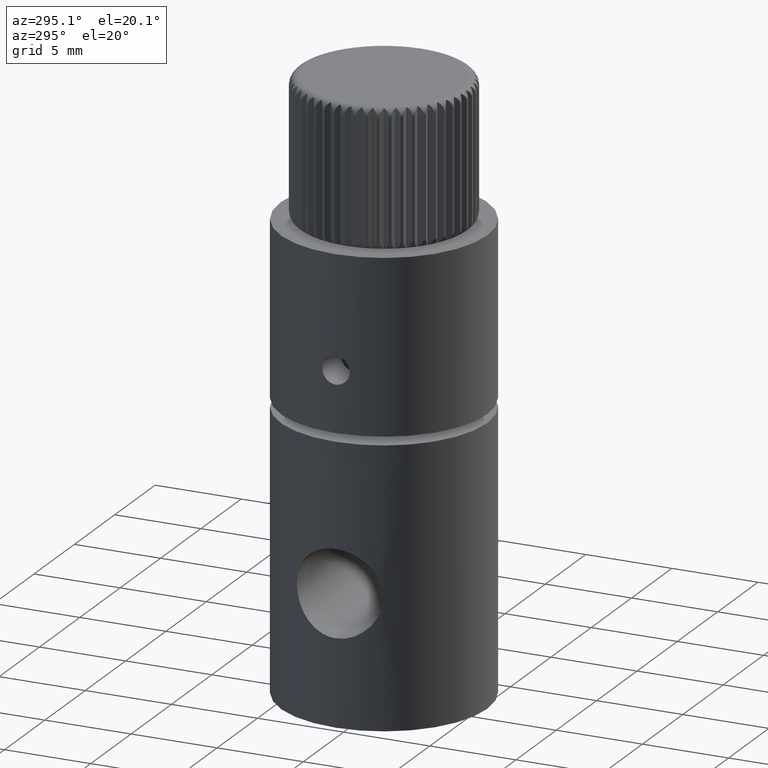
[diagram: clean part render]
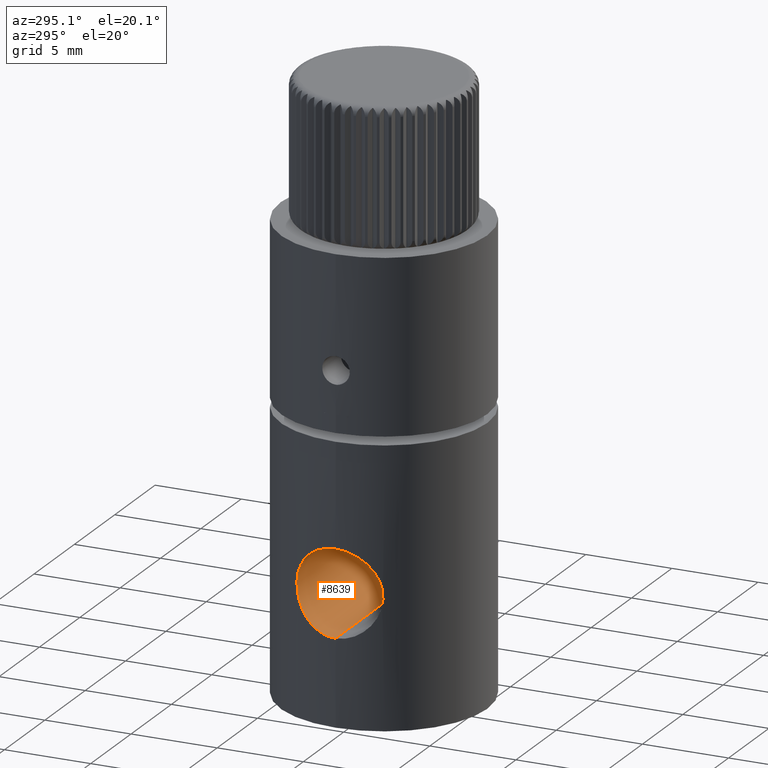
[diagram: same view with one face highlighted and labeled with its STEP entity id]
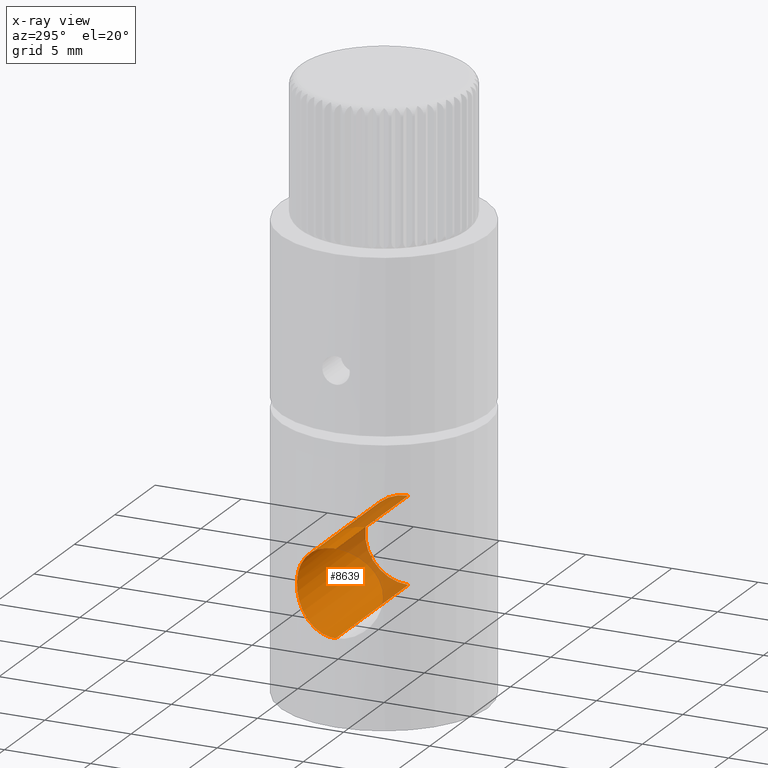
[diagram: x-ray of the same camera — body ghosted, the highlighted face saturated]
A machine part, auxiliary view. The second image highlights one B-rep face of the part: STEP entity #8639.
The next image is the same camera in x-ray: the body ghosted, the highlighted face saturated — about 22% of this face is hidden behind the body in this view.
In plain terms, the highlighted cylindrical surface (partial cylindrical patch) has radius 2.5 mm, axis along (-1, -0, -0).
Its self-contained STEP definition (entity closure, byte-faithful):
#86 = CIRCLE ( 'NONE', #348, 2.499999999999998700 ) ;
#348 = AXIS2_PLACEMENT_3D ( 'NONE', #8832, #9520, #6317 ) ;
#435 = CARTESIAN_POINT ( 'NONE',  ( -5.491053255503498300, 2.418593444814171300, 6.846204008123888400 ) ) ;
#818 = CARTESIAN_POINT ( 'NONE',  ( -5.999999999999996400, 8.673617379884035500E-016, 7.500000000000000000 ) ) ;
#871 = VERTEX_POINT ( 'NONE', #7406 ) ;
#906 = VECTOR ( 'NONE', #8063, 1000.000000000000000 ) ;
#1162 = DIRECTION ( 'NONE',  ( 0.0000000000000000000, 0.0000000000000000000, 1.000000000000000000 ) ) ;
#1258 = ORIENTED_EDGE ( 'NONE', *, *, #3018, .T. ) ;
#1317 = CARTESIAN_POINT ( 'NONE',  ( -5.698635342894789300, 1.881449780072504500, 5.845840146213110000 ) ) ;
#1350 = LINE ( 'NONE', #10077, #4005 ) ;
#1740 = DIRECTION ( 'NONE',  ( -1.000000000000000000, -0.0000000000000000000, -0.0000000000000000000 ) ) ;
#1839 = VERTEX_POINT ( 'NONE', #5566 ) ;
#1878 = EDGE_CURVE ( 'NONE', #2751, #7685, #1350, .T. ) ;
#2081 = CARTESIAN_POINT ( 'NONE',  ( -5.993025678387394500, 0.3313286651165026600, 9.983390551656807300 ) ) ;
#2115 = CARTESIAN_POINT ( 'NONE',  ( -5.512296490036577600, 2.370510600221101600, 6.688919642907562100 ) ) ;
#2609 = AXIS2_PLACEMENT_3D ( 'NONE', #818, #1740, #1162 ) ;
#2751 = VERTEX_POINT ( 'NONE', #5667 ) ;
#2942 = CARTESIAN_POINT ( 'NONE',  ( -5.868189014291121300, 1.258442380232151200, 9.666296504189473300 ) ) ;
#2979 = CARTESIAN_POINT ( 'NONE',  ( -5.803710641115049600, 1.528475880810605100, 5.514995588957928500 ) ) ;
#3017 = CARTESIAN_POINT ( 'NONE',  ( -5.999999999999998200, 0.1672401054569761000, 10.00000000000000200 ) ) ;
#3018 = EDGE_CURVE ( 'NONE', #871, #7685, #9778, .T. ) ;
#3290 = ORIENTED_EDGE ( 'NONE', *, *, #7719, .F. ) ;
#3773 = CARTESIAN_POINT ( 'NONE',  ( -5.512683608006680600, 2.369582593462938200, 8.313322364475594000 ) ) ;
#4005 = VECTOR ( 'NONE', #6695, 1000.000000000000000 ) ;
#4635 = CARTESIAN_POINT ( 'NONE',  ( -5.999999999999996400, 1.028501702097774900E-020, 5.000000000000000900 ) ) ;
#4706 = CARTESIAN_POINT ( 'NONE',  ( -5.663027394641082100, 1.996726160520223800, 9.038487981714741400 ) ) ;
#4747 = CARTESIAN_POINT ( 'NONE',  ( -5.590935308825295100, 2.181708341974952800, 8.763253123388882000 ) ) ;
#5445 = CARTESIAN_POINT ( 'NONE',  ( -5.999999999999996400, 0.3294735782554636400, 5.000000000000000000 ) ) ;
#5551 = CARTESIAN_POINT ( 'NONE',  ( -5.454405485178528900, 2.499892161112044600, 7.666875040158466000 ) ) ;
#5566 = CARTESIAN_POINT ( 'NONE',  ( 3.000000000000004400, 8.673617379884035500E-016, 9.999999999999998200 ) ) ;
#5667 = CARTESIAN_POINT ( 'NONE',  ( 3.000000000000004400, 1.173523437775241600E-015, 5.000000000000001800 ) ) ;
#6317 = DIRECTION ( 'NONE',  ( 0.0000000000000000000, 0.0000000000000000000, 1.000000000000000000 ) ) ;
#6406 = CARTESIAN_POINT ( 'NONE',  ( -5.999999999999996400, -3.796207753093473700E-017, 9.999999999999998200 ) ) ;
#6446 = CARTESIAN_POINT ( 'NONE',  ( -5.897379805078886200, 1.115495851646001600, 9.743317304753061200 ) ) ;
#6628 = LINE ( 'NONE', #9885, #906 ) ;
#6695 = DIRECTION ( 'NONE',  ( -1.000000000000000000, -0.0000000000000000000, -0.0000000000000000000 ) ) ;
#7175 = CARTESIAN_POINT ( 'NONE',  ( -5.461976513600096600, 2.483561809314556200, 7.830378954680894000 ) ) ;
#7229 = ORIENTED_EDGE ( 'NONE', *, *, #1878, .F. ) ;
#7249 = CARTESIAN_POINT ( 'NONE',  ( -5.769071837164854200, 1.652909006526312800, 5.617451218969522500 ) ) ;
#7260 = ORIENTED_EDGE ( 'NONE', *, *, #9898, .T. ) ;
#7285 = CARTESIAN_POINT ( 'NONE',  ( -5.803619680562209600, 1.528829007836515000, 9.484741704410305700 ) ) ;
#7385 = CYLINDRICAL_SURFACE ( 'NONE', #2609, 2.499999999999998700 ) ;
#7406 = CARTESIAN_POINT ( 'NONE',  ( -5.999999999999996400, -3.796207753093473700E-017, 9.999999999999998200 ) ) ;
#7685 = VERTEX_POINT ( 'NONE', #10442 ) ;
#7719 = EDGE_CURVE ( 'NONE', #1839, #2751, #86, .T. ) ;
#7944 = CARTESIAN_POINT ( 'NONE',  ( -5.971116335839158600, 0.6621311939231094800, 5.067397270975984500 ) ) ;
#7981 = CARTESIAN_POINT ( 'NONE',  ( -5.966488535110094000, 0.6535671553393448400, 9.918647822616558000 ) ) ;
#8023 = CARTESIAN_POINT ( 'NONE',  ( -5.662626222328961000, 1.985928082928958500, 5.972807861370669400 ) ) ;
#8063 = DIRECTION ( 'NONE',  ( -1.000000000000000000, -0.0000000000000000000, -0.0000000000000000000 ) ) ;
#8409 = EDGE_LOOP ( 'NONE', ( #7229, #3290, #7260, #1258 ) ) ;
#8639 = ADVANCED_FACE ( 'NONE', ( #10754 ), #7385, .F. ) ;
#8810 = CARTESIAN_POINT ( 'NONE',  ( -5.565201832296446900, 2.243493183772682400, 6.384692784122994300 ) ) ;
#8832 = CARTESIAN_POINT ( 'NONE',  ( 3.000000000000004400, 8.673617379884035500E-016, 7.500000000000000000 ) ) ;
#8884 = CARTESIAN_POINT ( 'NONE',  ( -5.596081245774402500, 2.166361182966829400, 6.241784834063874000 ) ) ;
#8918 = CARTESIAN_POINT ( 'NONE',  ( -5.946577916524693900, 0.8134068127896105800, 9.869635601047432900 ) ) ;
#9520 = DIRECTION ( 'NONE',  ( -1.000000000000000000, -0.0000000000000000000, -0.0000000000000000000 ) ) ;
#9655 = CARTESIAN_POINT ( 'NONE',  ( -5.897869239595885400, 1.112789484202404400, 5.255408054310577400 ) ) ;
#9696 = CARTESIAN_POINT ( 'NONE',  ( -5.454307112671460600, 2.500106784638723900, 7.336371880103818000 ) ) ;
#9778 = B_SPLINE_CURVE_WITH_KNOTS ( 'NONE', 3,
 ( #6406, #3017, #2081, #7981, #8918, #6446, #2942, #7285, #9782, #4706, #4747, #3773, #10654, #7175, #5551, #9696, #10616, #435, #2115, #8810, #8884, #8023, #1317, #7249, #2979, #10689, #9655, #7944, #5445, #4635 ),
 .UNSPECIFIED., .F., .F.,
 ( 4, 2, 2, 2, 2, 2, 2, 2, 2, 2, 2, 2, 2, 2, 4 ),
 ( 3.683458209943862600E-020, 0.0004942134665145543800, 0.0009884269330291087700, 0.001482640399543663000, 0.001976853866058217500, 0.002965280799087326900, 0.003459494265601881200, 0.003953707732116435900, 0.004447921198630992400, 0.004942134665145549700, 0.005436348131660107000, 0.005930561598174663400, 0.006424775064689220800, 0.006918988531203777200, 0.007907415464232892700 ),
 .UNSPECIFIED. ) ;
#9782 = CARTESIAN_POINT ( 'NONE',  ( -5.768422958052131100, 1.655142058905327000, 9.380550430682271600 ) ) ;
#9885 = CARTESIAN_POINT ( 'NONE',  ( -5.999999999999996400, 8.673617379884035500E-016, 9.999999999999998200 ) ) ;
#9898 = EDGE_CURVE ( 'NONE', #1839, #871, #6628, .T. ) ;
#10077 = CARTESIAN_POINT ( 'NONE',  ( -5.999999999999996400, 1.173523437775241800E-015, 5.000000000000000900 ) ) ;
#10442 = CARTESIAN_POINT ( 'NONE',  ( -5.999999999999996400, 1.028501702097774900E-020, 5.000000000000000900 ) ) ;
#10616 = CARTESIAN_POINT ( 'NONE',  ( -5.462051476449278000, 2.483395613810240700, 7.168654748639110800 ) ) ;
#10654 = CARTESIAN_POINT ( 'NONE',  ( -5.491054996713697500, 2.418590853962362600, 8.153947853816674800 ) ) ;
#10689 = CARTESIAN_POINT ( 'NONE',  ( -5.868227615580744700, 1.258252906115199900, 5.333601916930108500 ) ) ;
#10754 = FACE_OUTER_BOUND ( 'NONE', #8409, .T. ) ;